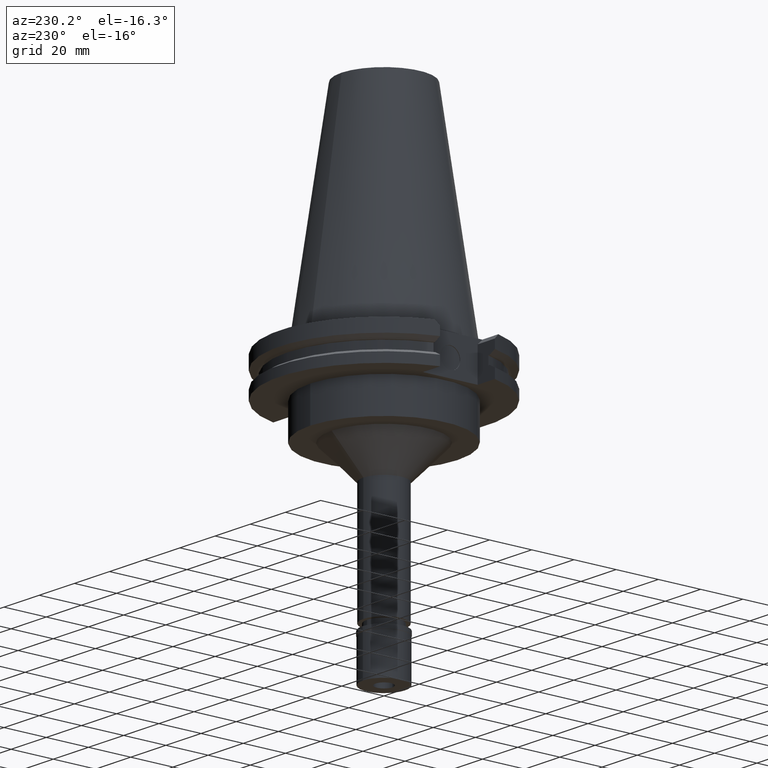
[diagram: clean part render]
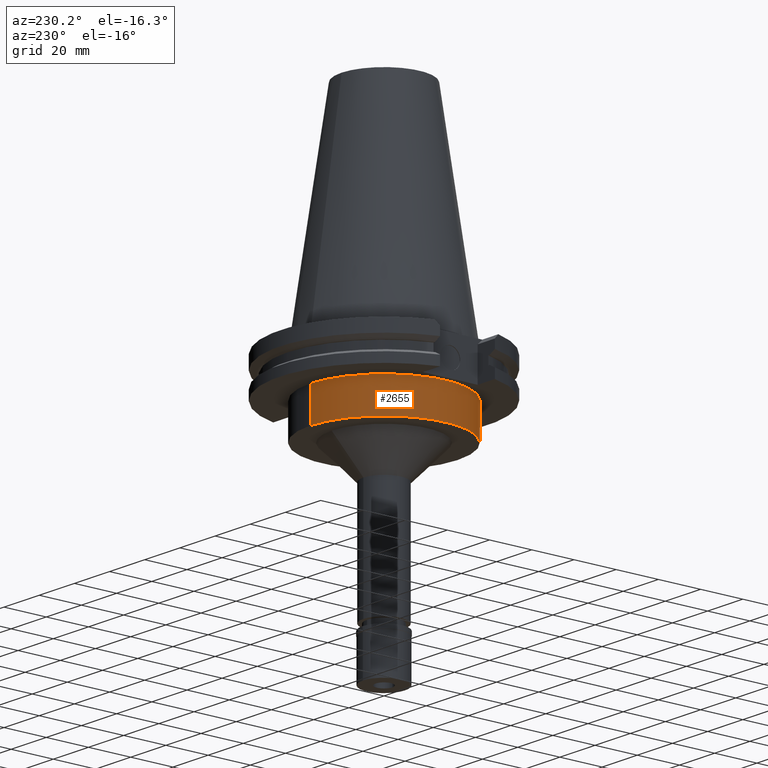
[diagram: same view with one face highlighted and labeled with its STEP entity id]
A machine part, auxiliary view. The second image highlights one B-rep face of the part: STEP entity #2655.
In plain terms, the highlighted cylindrical surface (partial cylindrical patch) has radius 34.925 mm, axis along (0, 0, -1).
Its self-contained STEP definition (entity closure, byte-faithful):
#56 = DIRECTION ( 'NONE',  ( 0.0000000000000000000, 0.0000000000000000000, -1.000000000000000000 ) ) ;
#72 = AXIS2_PLACEMENT_3D ( 'NONE', #2056, #3304, #2340 ) ;
#125 = ORIENTED_EDGE ( 'NONE', *, *, #1474, .T. ) ;
#546 = CARTESIAN_POINT ( 'NONE',  ( 0.0000000000000000000, 2.603966489026999937E-14, 112.6299999999999955 ) ) ;
#556 = VECTOR ( 'NONE', #2775, 1000.000000000000000 ) ;
#611 = CIRCLE ( 'NONE', #2723, 34.92499999999999716 ) ;
#721 = CARTESIAN_POINT ( 'NONE',  ( 0.0000000000000000000, 34.92499999999999716, -19.05000000000000071 ) ) ;
#763 = VERTEX_POINT ( 'NONE', #2199 ) ;
#793 = DIRECTION ( 'NONE',  ( 0.0000000000000000000, 0.0000000000000000000, -1.000000000000000000 ) ) ;
#956 = DIRECTION ( 'NONE',  ( 0.0000000000000000000, 0.0000000000000000000, -1.000000000000000000 ) ) ;
#1024 = ORIENTED_EDGE ( 'NONE', *, *, #2351, .F. ) ;
#1104 = CARTESIAN_POINT ( 'NONE',  ( 0.0000000000000000000, 2.603966489026999937E-14, -19.05000000000000071 ) ) ;
#1201 = LINE ( 'NONE', #721, #2971 ) ;
#1205 = LINE ( 'NONE', #2446, #556 ) ;
#1222 = ORIENTED_EDGE ( 'NONE', *, *, #2576, .T. ) ;
#1351 = CARTESIAN_POINT ( 'NONE',  ( 0.0000000000000000000, -34.92499999999999716, -19.05000000000000071 ) ) ;
#1428 = VERTEX_POINT ( 'NONE', #1625 ) ;
#1474 = EDGE_CURVE ( 'NONE', #3322, #1428, #611, .T. ) ;
#1515 = CYLINDRICAL_SURFACE ( 'NONE', #1964, 34.92499999999999716 ) ;
#1625 = CARTESIAN_POINT ( 'NONE',  ( 0.0000000000000000000, 34.92499999999999716, -19.05000000000000071 ) ) ;
#1672 = CARTESIAN_POINT ( 'NONE',  ( 0.0000000000000000000, 34.92499999999999716, -35.00000000000000000 ) ) ;
#1820 = DIRECTION ( 'NONE',  ( 0.0000000000000000000, -1.000000000000000000, 0.0000000000000000000 ) ) ;
#1964 = AXIS2_PLACEMENT_3D ( 'NONE', #546, #793, #1820 ) ;
#2056 = CARTESIAN_POINT ( 'NONE',  ( 0.0000000000000000000, 2.603966489026999937E-14, -35.00000000000000000 ) ) ;
#2186 = VERTEX_POINT ( 'NONE', #1672 ) ;
#2199 = CARTESIAN_POINT ( 'NONE',  ( 0.0000000000000000000, -34.92499999999999716, -35.00000000000000000 ) ) ;
#2288 = FACE_OUTER_BOUND ( 'NONE', #2682, .T. ) ;
#2340 = DIRECTION ( 'NONE',  ( 0.0000000000000000000, 1.000000000000000000, 0.0000000000000000000 ) ) ;
#2351 = EDGE_CURVE ( 'NONE', #3322, #763, #1205, .T. ) ;
#2446 = CARTESIAN_POINT ( 'NONE',  ( 0.0000000000000000000, -34.92499999999999716, -19.05000000000000071 ) ) ;
#2576 = EDGE_CURVE ( 'NONE', #1428, #2186, #1201, .T. ) ;
#2655 = ADVANCED_FACE ( 'NONE', ( #2288 ), #1515, .T. ) ;
#2682 = EDGE_LOOP ( 'NONE', ( #3229, #1024, #125, #1222 ) ) ;
#2689 = EDGE_CURVE ( 'NONE', #2186, #763, #3189, .T. ) ;
#2723 = AXIS2_PLACEMENT_3D ( 'NONE', #1104, #56, #3154 ) ;
#2775 = DIRECTION ( 'NONE',  ( 0.0000000000000000000, 0.0000000000000000000, -1.000000000000000000 ) ) ;
#2971 = VECTOR ( 'NONE', #956, 1000.000000000000000 ) ;
#3154 = DIRECTION ( 'NONE',  ( 0.0000000000000000000, -1.000000000000000000, 0.0000000000000000000 ) ) ;
#3189 = CIRCLE ( 'NONE', #72, 34.92499999999999716 ) ;
#3229 = ORIENTED_EDGE ( 'NONE', *, *, #2689, .T. ) ;
#3304 = DIRECTION ( 'NONE',  ( 0.0000000000000000000, 0.0000000000000000000, 1.000000000000000000 ) ) ;
#3322 = VERTEX_POINT ( 'NONE', #1351 ) ;